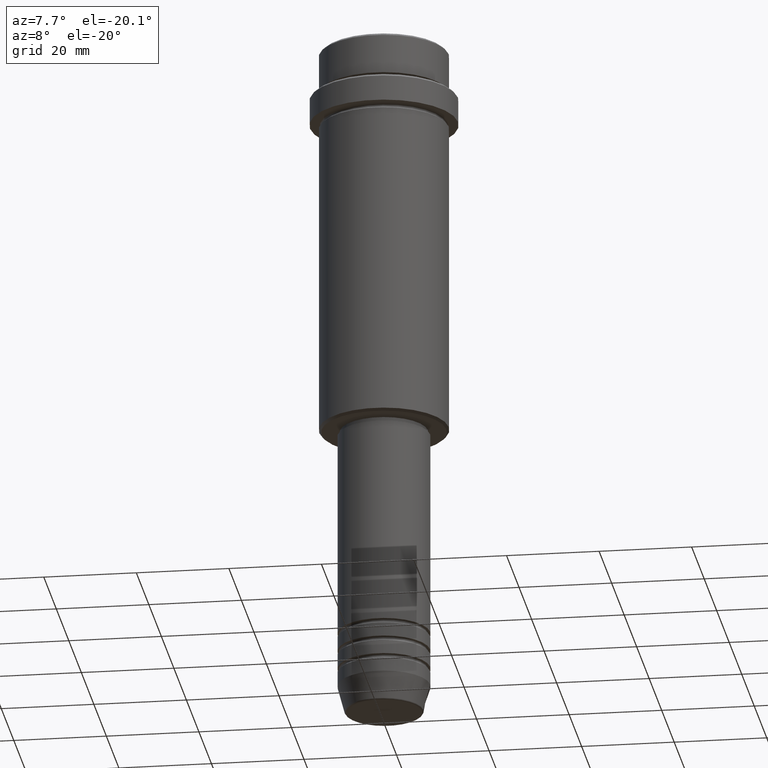
[diagram: clean part render]
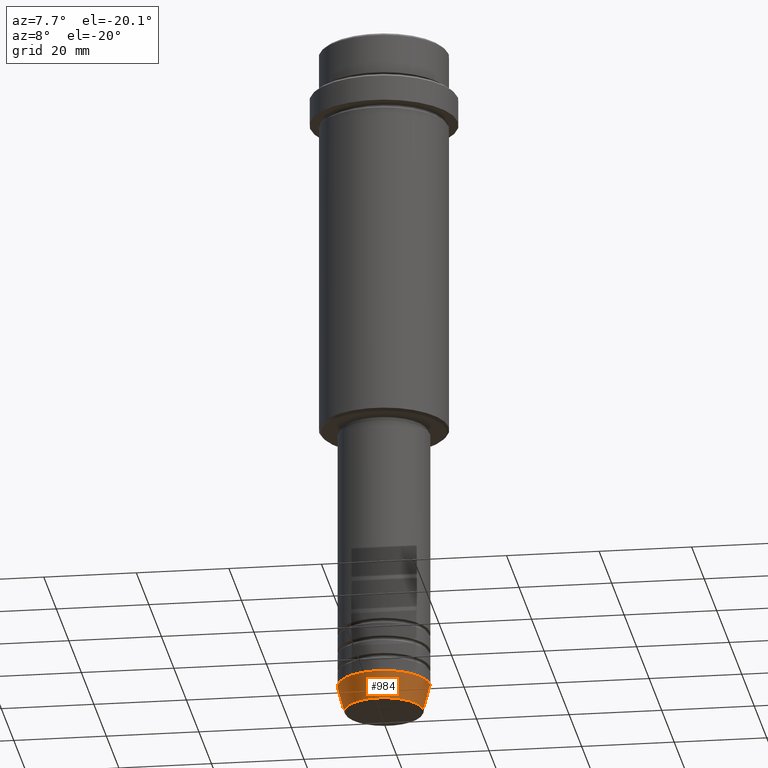
[diagram: same view with one face highlighted and labeled with its STEP entity id]
A machine part, auxiliary view. The second image highlights one B-rep face of the part: STEP entity #984.
In plain terms, the highlighted conical surface has half-angle 15 deg.
Its self-contained STEP definition (entity closure, byte-faithful):
#23 = DIRECTION ( 'NONE',  ( -0.000000000000000000, -0.000000000000000000, 1.000000000000000000 ) ) ;
#48 = ORIENTED_EDGE ( 'NONE', *, *, #742, .T. ) ;
#51 = DIRECTION ( 'NONE',  ( -0.000000000000000000, -0.000000000000000000, 1.000000000000000000 ) ) ;
#126 = EDGE_CURVE ( 'NONE', #881, #1001, #774, .T. ) ;
#192 = CARTESIAN_POINT ( 'NONE',  ( 10.00000000000000000, 0.000000000000000000, -144.0000000000000284 ) ) ;
#196 = CONICAL_SURFACE ( 'NONE', #1309, 10.00000000000000000, 0.2617993877991498519 ) ;
#311 = ORIENTED_EDGE ( 'NONE', *, *, #586, .F. ) ;
#356 = CARTESIAN_POINT ( 'NONE',  ( 0.000000000000000000, 0.000000000000000000, -144.0000000000000284 ) ) ;
#377 = LINE ( 'NONE', #716, #945 ) ;
#389 = DIRECTION ( 'NONE',  ( 0.2588190451025211281, 0.000000000000000000, 0.9659258262890680902 ) ) ;
#447 = FACE_OUTER_BOUND ( 'NONE', #538, .T. ) ;
#458 = DIRECTION ( 'NONE',  ( 1.000000000000000000, 0.000000000000000000, 0.000000000000000000 ) ) ;
#538 = EDGE_LOOP ( 'NONE', ( #311, #978, #48, #1180 ) ) ;
#586 = EDGE_CURVE ( 'NONE', #881, #1213, #780, .T. ) ;
#626 = VERTEX_POINT ( 'NONE', #192 ) ;
#688 = EDGE_CURVE ( 'NONE', #1213, #626, #779, .T. ) ;
#716 = CARTESIAN_POINT ( 'NONE',  ( 10.00000000000000000, 0.000000000000000000, -144.0000000000000284 ) ) ;
#742 = EDGE_CURVE ( 'NONE', #1001, #626, #377, .T. ) ;
#774 = CIRCLE ( 'NONE', #991, 8.491604264568309191 ) ;
#779 = CIRCLE ( 'NONE', #1158, 10.00000000000000000 ) ;
#780 = LINE ( 'NONE', #897, #1307 ) ;
#857 = DIRECTION ( 'NONE',  ( -0.000000000000000000, -0.000000000000000000, 1.000000000000000000 ) ) ;
#875 = CARTESIAN_POINT ( 'NONE',  ( 0.000000000000000000, 0.000000000000000000, -144.0000000000000284 ) ) ;
#879 = CARTESIAN_POINT ( 'NONE',  ( -8.491604264568309191, 1.132284198685156387E-15, -149.6294095225512990 ) ) ;
#881 = VERTEX_POINT ( 'NONE', #879 ) ;
#897 = CARTESIAN_POINT ( 'NONE',  ( -10.00000000000000000, 1.224646799147353256E-15, -144.0000000000000284 ) ) ;
#936 = DIRECTION ( 'NONE',  ( -0.2588190451025211281, 3.169619151431769872E-17, 0.9659258262890680902 ) ) ;
#945 = VECTOR ( 'NONE', #389, 1000.000000000000114 ) ;
#978 = ORIENTED_EDGE ( 'NONE', *, *, #126, .T. ) ;
#984 = ADVANCED_FACE ( 'NONE', ( #447 ), #196, .T. ) ;
#991 = AXIS2_PLACEMENT_3D ( 'NONE', #1087, #857, #1066 ) ;
#1001 = VERTEX_POINT ( 'NONE', #1212 ) ;
#1007 = DIRECTION ( 'NONE',  ( 1.000000000000000000, 0.000000000000000000, 0.000000000000000000 ) ) ;
#1066 = DIRECTION ( 'NONE',  ( 1.000000000000000000, 0.000000000000000000, 0.000000000000000000 ) ) ;
#1087 = CARTESIAN_POINT ( 'NONE',  ( 0.000000000000000000, 0.000000000000000000, -149.6294095225512990 ) ) ;
#1158 = AXIS2_PLACEMENT_3D ( 'NONE', #356, #51, #458 ) ;
#1180 = ORIENTED_EDGE ( 'NONE', *, *, #688, .F. ) ;
#1212 = CARTESIAN_POINT ( 'NONE',  ( 8.491604264568309191, 0.000000000000000000, -149.6294095225512990 ) ) ;
#1213 = VERTEX_POINT ( 'NONE', #1366 ) ;
#1307 = VECTOR ( 'NONE', #936, 1000.000000000000114 ) ;
#1309 = AXIS2_PLACEMENT_3D ( 'NONE', #875, #23, #1007 ) ;
#1366 = CARTESIAN_POINT ( 'NONE',  ( -10.00000000000000000, 1.224646799147353256E-15, -144.0000000000000284 ) ) ;